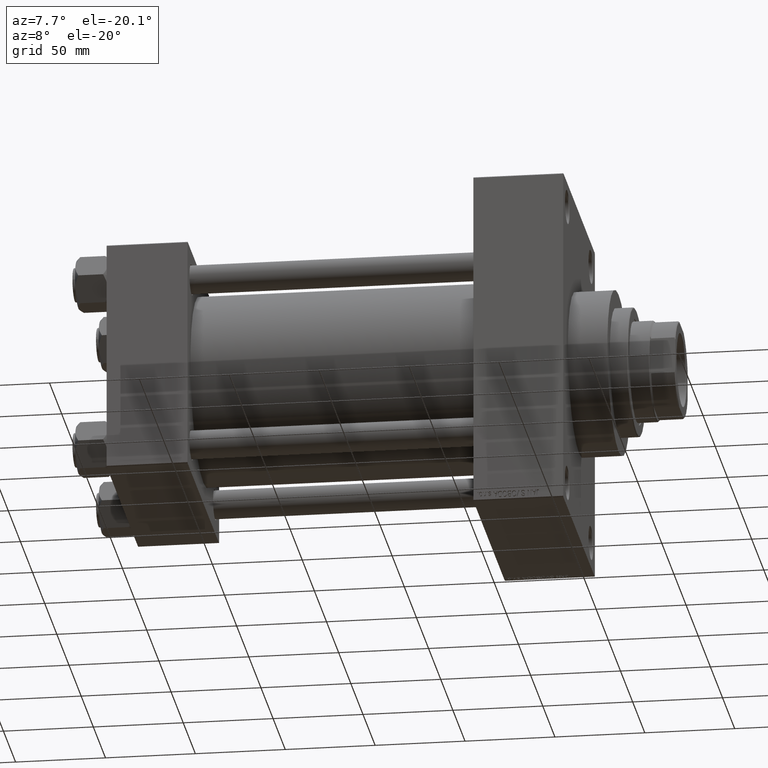
[diagram: clean part render]
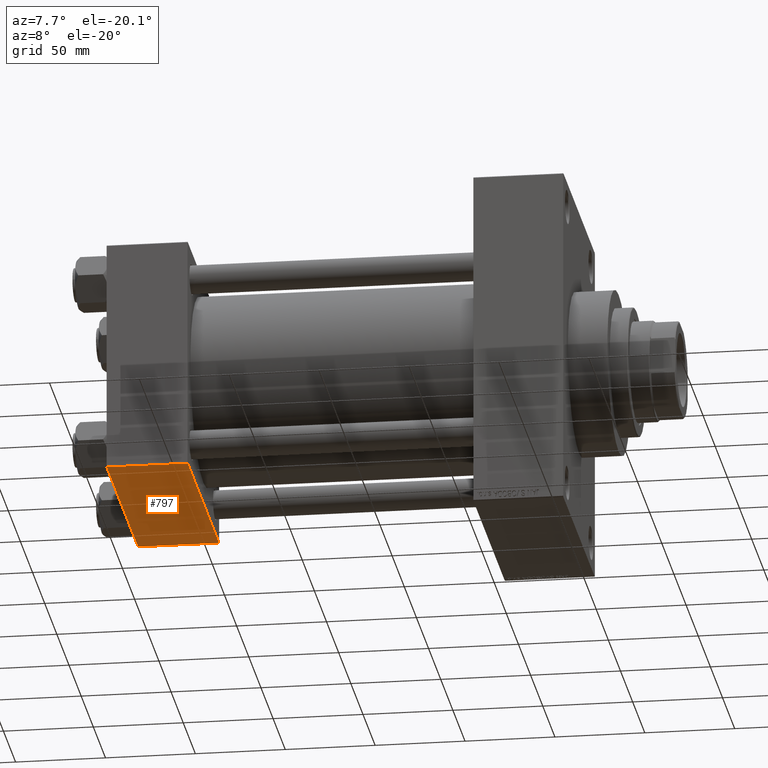
[diagram: same view with one face highlighted and labeled with its STEP entity id]
A machine part, auxiliary view. The second image highlights one B-rep face of the part: STEP entity #797.
In plain terms, the highlighted planar face has unit normal (0, 0, -1).
Its self-contained STEP definition (entity closure, byte-faithful):
#441 = DIRECTION ( 'NONE',  ( 0.000000000000000000, 1.000000000000000000, 1.067522139062650548E-16 ) ) ;
#797 = ADVANCED_FACE ( 'NONE', ( #7935 ), #26502, .T. ) ;
#2987 = DIRECTION ( 'NONE',  ( -1.000000000000000000, 0.000000000000000000, 0.000000000000000000 ) ) ;
#4760 = VERTEX_POINT ( 'NONE', #34625 ) ;
#6862 = CARTESIAN_POINT ( 'NONE',  ( 45.00000000000000000, 64.49999999999997158, -64.99999999999998579 ) ) ;
#7291 = DIRECTION ( 'NONE',  ( 0.000000000000000000, -1.000000000000000000, -1.067522139062650425E-16 ) ) ;
#7347 = CARTESIAN_POINT ( 'NONE',  ( 45.00000000000000000, -64.49999999999994316, -65.00000000000000000 ) ) ;
#7935 = FACE_OUTER_BOUND ( 'NONE', #28049, .T. ) ;
#9215 = DIRECTION ( 'NONE',  ( 0.000000000000000000, -1.000000000000000000, -1.067522139062650425E-16 ) ) ;
#12294 = LINE ( 'NONE', #30878, #16463 ) ;
#14278 = CARTESIAN_POINT ( 'NONE',  ( 0.000000000000000000, 65.00000000000000000, -64.99999999999998579 ) ) ;
#16072 = VECTOR ( 'NONE', #9215, 1000.000000000000000 ) ;
#16463 = VECTOR ( 'NONE', #41743, 1000.000000000000000 ) ;
#18355 = EDGE_CURVE ( 'NONE', #43401, #4760, #36960, .T. ) ;
#18530 = ORIENTED_EDGE ( 'NONE', *, *, #45811, .T. ) ;
#19845 = CARTESIAN_POINT ( 'NONE',  ( 45.00000000000000000, 65.00000000000000000, -64.99999999999998579 ) ) ;
#21683 = VERTEX_POINT ( 'NONE', #6862 ) ;
#24307 = ORIENTED_EDGE ( 'NONE', *, *, #46794, .T. ) ;
#24706 = LINE ( 'NONE', #46673, #36131 ) ;
#24734 = CARTESIAN_POINT ( 'NONE',  ( 0.000000000000000000, 64.49999999999997158, -64.99999999999998579 ) ) ;
#24882 = ORIENTED_EDGE ( 'NONE', *, *, #29635, .T. ) ;
#26502 = PLANE ( 'NONE',  #45208 ) ;
#28049 = EDGE_LOOP ( 'NONE', ( #43018, #24882, #18530, #24307 ) ) ;
#29416 = DIRECTION ( 'NONE',  ( 0.000000000000000000, 1.067522139062650548E-16, -1.000000000000000000 ) ) ;
#29635 = EDGE_CURVE ( 'NONE', #43401, #21683, #12294, .T. ) ;
#30878 = CARTESIAN_POINT ( 'NONE',  ( 45.00000000000000000, 64.49999999999997158, -64.99999999999998579 ) ) ;
#31797 = VECTOR ( 'NONE', #7291, 1000.000000000000000 ) ;
#34625 = CARTESIAN_POINT ( 'NONE',  ( 0.000000000000000000, -64.49999999999994316, -65.00000000000000000 ) ) ;
#36131 = VECTOR ( 'NONE', #2987, 1000.000000000000000 ) ;
#36960 = LINE ( 'NONE', #14278, #31797 ) ;
#37375 = CARTESIAN_POINT ( 'NONE',  ( 45.00000000000000000, 65.00000000000000000, -64.99999999999998579 ) ) ;
#40745 = VERTEX_POINT ( 'NONE', #7347 ) ;
#41743 = DIRECTION ( 'NONE',  ( 1.000000000000000000, 0.000000000000000000, 0.000000000000000000 ) ) ;
#43018 = ORIENTED_EDGE ( 'NONE', *, *, #18355, .F. ) ;
#43401 = VERTEX_POINT ( 'NONE', #24734 ) ;
#45208 = AXIS2_PLACEMENT_3D ( 'NONE', #37375, #29416, #441 ) ;
#45431 = LINE ( 'NONE', #19845, #16072 ) ;
#45811 = EDGE_CURVE ( 'NONE', #21683, #40745, #45431, .T. ) ;
#46673 = CARTESIAN_POINT ( 'NONE',  ( 0.000000000000000000, -64.49999999999994316, -65.00000000000000000 ) ) ;
#46794 = EDGE_CURVE ( 'NONE', #40745, #4760, #24706, .T. ) ;